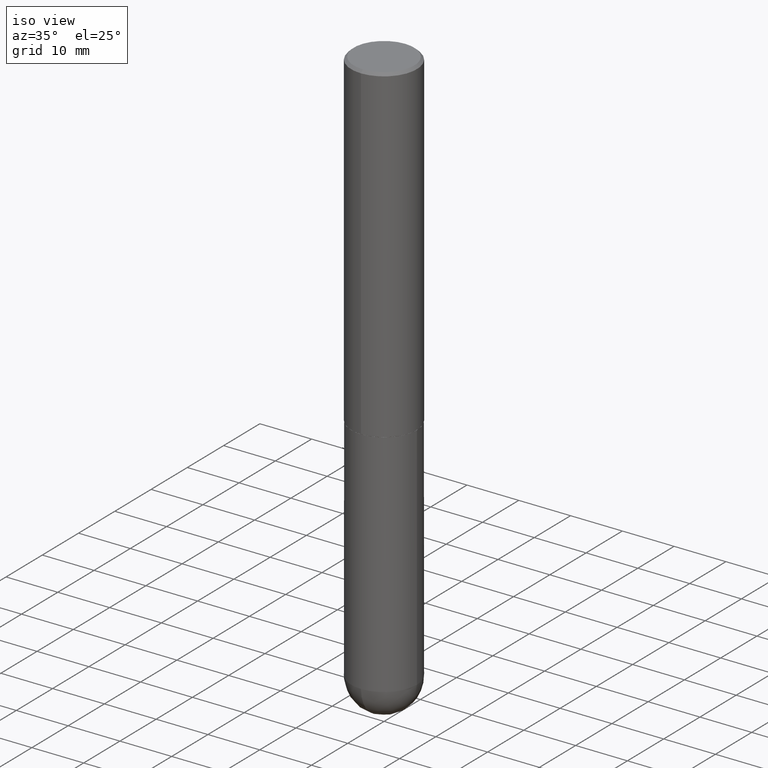
[diagram: clean part render]
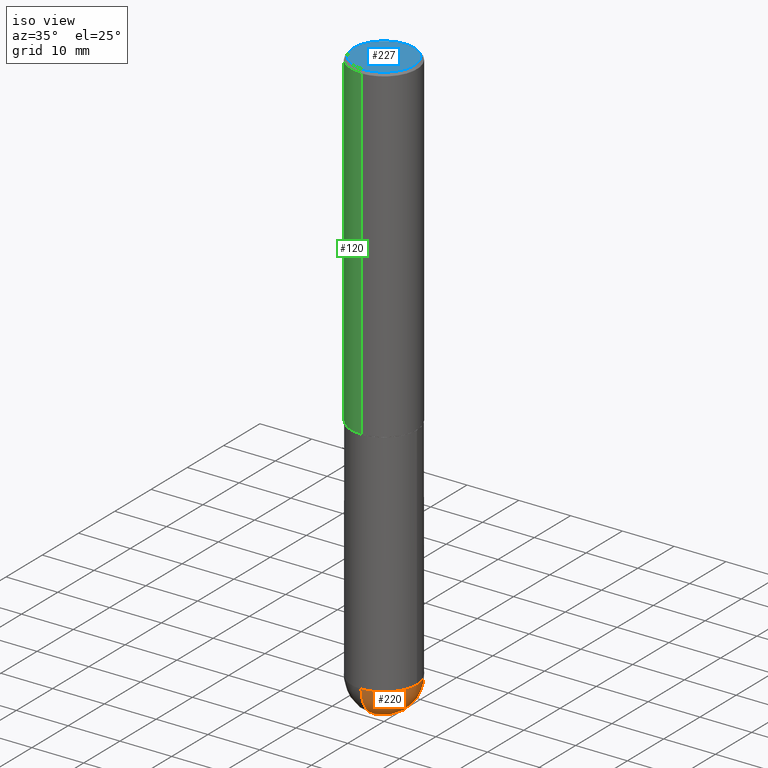
[diagram: same view with three faces highlighted in distinct colors, each labeled with its STEP entity id]
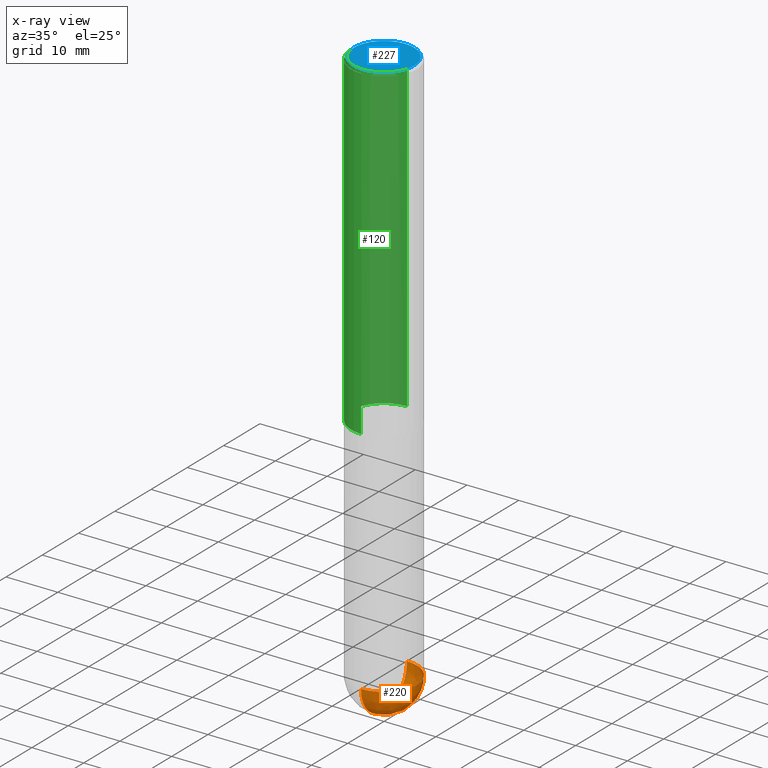
[diagram: x-ray of the same camera — body ghosted, the three highlighted faces saturated]
A machine part, iso view with three faces highlighted in distinct colors.
The next image is the same camera in x-ray (body ghosted, the three faces saturated) — at least one of them is partly hidden behind the body in this view.
Their STEP definitions:

[orange] entity #220 — the highlighted spherical surface has radius 6.35 mm.
#3 = EDGE_CURVE ( 'NONE', #49, #74, #329, .T. ) ;
#8 = ORIENTED_EDGE ( 'NONE', *, *, #174, .F. ) ;
#21 = CARTESIAN_POINT ( 'NONE',  ( 1.745740669421669032E-15, 0.2499999999999849842, -4.250000000000001776 ) ) ;
#25 = CARTESIAN_POINT ( 'NONE',  ( 1.006212264837294429E-28, -1.531297805822341912E-14, -4.250000000000000000 ) ) ;
#33 = DIRECTION ( 'NONE',  ( -2.445468806185136597E-29, 3.491481338843145583E-15, 1.000000000000000000 ) ) ;
#49 = VERTEX_POINT ( 'NONE', #56 ) ;
#50 = CARTESIAN_POINT ( 'NONE',  ( 1.006212264837294429E-28, -1.531297805822341912E-14, -4.250000000000000000 ) ) ;
#56 = CARTESIAN_POINT ( 'NONE',  ( 1.068417942853397052E-28, -1.617054030794486372E-14, -4.500000000000000888 ) ) ;
#57 = DIRECTION ( 'NONE',  ( -1.000000000000000000, 6.982962677686265922E-15, -4.883557194083113462E-29 ) ) ;
#71 = AXIS2_PLACEMENT_3D ( 'NONE', #254, #125, #92 ) ;
#74 = VERTEX_POINT ( 'NONE', #21 ) ;
#92 = DIRECTION ( 'NONE',  ( 1.000000000000000000, -6.982962677686270655E-15, 0.000000000000000000 ) ) ;
#115 = CARTESIAN_POINT ( 'NONE',  ( 1.006212264837294429E-28, -1.531297805822341912E-14, -4.250000000000000000 ) ) ;
#116 = DIRECTION ( 'NONE',  ( 1.000000000000000000, -6.982962677686265922E-15, 4.883557194083112340E-29 ) ) ;
#125 = DIRECTION ( 'NONE',  ( -2.445468806185136597E-29, 3.491481338843145583E-15, 1.000000000000000000 ) ) ;
#126 = DIRECTION ( 'NONE',  ( -1.000000000000000000, 7.105427357601001070E-15, -4.926315508542082329E-29 ) ) ;
#127 = SPHERICAL_SURFACE ( 'NONE', #203, 0.2500000000000001110 ) ;
#138 = AXIS2_PLACEMENT_3D ( 'NONE', #50, #126, #320 ) ;
#140 = VERTEX_POINT ( 'NONE', #351 ) ;
#142 = AXIS2_PLACEMENT_3D ( 'NONE', #25, #116, #155 ) ;
#155 = DIRECTION ( 'NONE',  ( 6.982962677686266711E-15, 1.000000000000000000, 0.000000000000000000 ) ) ;
#173 = ORIENTED_EDGE ( 'NONE', *, *, #239, .F. ) ;
#174 = EDGE_CURVE ( 'NONE', #49, #212, #258, .T. ) ;
#191 = DIRECTION ( 'NONE',  ( 1.000000000000000000, -6.982962677686270655E-15, 0.000000000000000000 ) ) ;
#196 = CIRCLE ( 'NONE', #71, 0.2500000000000000000 ) ;
#203 = AXIS2_PLACEMENT_3D ( 'NONE', #115, #57, #310 ) ;
#212 = VERTEX_POINT ( 'NONE', #409 ) ;
#220 = ADVANCED_FACE ( 'NONE', ( #259 ), #127, .T. ) ;
#237 = EDGE_LOOP ( 'NONE', ( #8, #333, #392, #173 ) ) ;
#239 = EDGE_CURVE ( 'NONE', #212, #140, #196, .T. ) ;
#254 = CARTESIAN_POINT ( 'NONE',  ( 1.039324242628683054E-28, -1.483879569008337040E-14, -4.250000000000000000 ) ) ;
#258 = CIRCLE ( 'NONE', #138, 0.2500000000000001110 ) ;
#259 = FACE_OUTER_BOUND ( 'NONE', #237, .T. ) ;
#293 = CIRCLE ( 'NONE', #308, 0.2500000000000000000 ) ;
#308 = AXIS2_PLACEMENT_3D ( 'NONE', #322, #33, #191 ) ;
#310 = DIRECTION ( 'NONE',  ( 6.982962677686265922E-15, 1.000000000000000000, -4.370956789862818783E-15 ) ) ;
#320 = DIRECTION ( 'NONE',  ( -7.105427357601001859E-15, -1.000000000000000000, 0.000000000000000000 ) ) ;
#322 = CARTESIAN_POINT ( 'NONE',  ( 1.039324242628683054E-28, -1.483879569008337040E-14, -4.250000000000000000 ) ) ;
#329 = CIRCLE ( 'NONE', #142, 0.2500000000000001110 ) ;
#333 = ORIENTED_EDGE ( 'NONE', *, *, #3, .T. ) ;
#340 = EDGE_CURVE ( 'NONE', #140, #74, #293, .T. ) ;
#351 = CARTESIAN_POINT ( 'NONE',  ( 0.2500000000000000000, -1.352949018801718751E-14, -4.250000000000000000 ) ) ;
#392 = ORIENTED_EDGE ( 'NONE', *, *, #340, .F. ) ;
#409 = CARTESIAN_POINT ( 'NONE',  ( -1.776356839400148307E-15, -0.2500000000000151545, -4.249999999999999112 ) ) ;

[blue] entity #227 — the highlighted planar face has unit normal (0, -0, -1).
#2 = CARTESIAN_POINT ( 'NONE',  ( -3.026864160722213020E-45, 4.321401483293435708E-31, 1.237721285492321868E-16 ) ) ;
#10 = CIRCLE ( 'NONE', #243, 0.2299999999999998435 ) ;
#22 = DIRECTION ( 'NONE',  ( 6.982962677686265922E-15, 1.000000000000000000, -3.491417279435842514E-15 ) ) ;
#24 = DIRECTION ( 'NONE',  ( 2.445513538630171527E-29, -3.491417279435842514E-15, -1.000000000000000000 ) ) ;
#79 = AXIS2_PLACEMENT_3D ( 'NONE', #2, #289, #342 ) ;
#84 = DIRECTION ( 'NONE',  ( -2.445513538630171807E-29, 3.491417279435842514E-15, 1.000000000000000000 ) ) ;
#101 = EDGE_CURVE ( 'NONE', #398, #339, #10, .T. ) ;
#105 = CIRCLE ( 'NONE', #79, 0.2299999999999998435 ) ;
#132 = CARTESIAN_POINT ( 'NONE',  ( -1.646519519465166573E-15, -0.2299999999999998435, 9.267981028194753931E-16 ) ) ;
#150 = DIRECTION ( 'NONE',  ( -6.982962677686265922E-15, -1.000000000000000000, 3.491417279435842514E-15 ) ) ;
#160 = AXIS2_PLACEMENT_3D ( 'NONE', #412, #24, #22 ) ;
#192 = CARTESIAN_POINT ( 'NONE',  ( 1.675911042644703379E-15, 0.2299999999999998435, -6.792538457210110194E-16 ) ) ;
#215 = EDGE_CURVE ( 'NONE', #339, #398, #105, .T. ) ;
#227 = ADVANCED_FACE ( 'NONE', ( #352 ), #344, .F. ) ;
#243 = AXIS2_PLACEMENT_3D ( 'NONE', #311, #84, #150 ) ;
#269 = EDGE_LOOP ( 'NONE', ( #365, #361 ) ) ;
#289 = DIRECTION ( 'NONE',  ( -2.445513538630171807E-29, 3.491417279435842514E-15, 1.000000000000000000 ) ) ;
#311 = CARTESIAN_POINT ( 'NONE',  ( -3.026864160722213020E-45, 4.321401483293435708E-31, 1.237721285492321868E-16 ) ) ;
#339 = VERTEX_POINT ( 'NONE', #192 ) ;
#342 = DIRECTION ( 'NONE',  ( -6.982962677686265922E-15, -1.000000000000000000, 3.491417279435842514E-15 ) ) ;
#344 = PLANE ( 'NONE',  #160 ) ;
#352 = FACE_OUTER_BOUND ( 'NONE', #269, .T. ) ;
#361 = ORIENTED_EDGE ( 'NONE', *, *, #101, .T. ) ;
#365 = ORIENTED_EDGE ( 'NONE', *, *, #215, .T. ) ;
#398 = VERTEX_POINT ( 'NONE', #132 ) ;
#412 = CARTESIAN_POINT ( 'NONE',  ( 1.606081415867840081E-15, 0.2299999999999998435, -7.411399099956271128E-16 ) ) ;

[green] entity #120 — the highlighted cylindrical surface (partial cylindrical patch) has radius 6.35 mm, axis along (-0, 0, 1).
#4 = CARTESIAN_POINT ( 'NONE',  ( 6.111338333036800677E-29, -8.725051781310170684E-15, -2.499000000000000110 ) ) ;
#11 = AXIS2_PLACEMENT_3D ( 'NONE', #4, #313, #385 ) ;
#14 = EDGE_LOOP ( 'NONE', ( #43, #80, #238, #306 ) ) ;
#23 = LINE ( 'NONE', #182, #104 ) ;
#35 = AXIS2_PLACEMENT_3D ( 'NONE', #90, #349, #319 ) ;
#37 = LINE ( 'NONE', #233, #336 ) ;
#43 = ORIENTED_EDGE ( 'NONE', *, *, #60, .F. ) ;
#55 = CARTESIAN_POINT ( 'NONE',  ( -1.715124499442882299E-15, -0.2500000000000000555, -0.01999999999999918510 ) ) ;
#58 = DIRECTION ( 'NONE',  ( -2.445513538630171807E-29, 3.491417279435842514E-15, 1.000000000000000000 ) ) ;
#60 = EDGE_CURVE ( 'NONE', #363, #390, #23, .T. ) ;
#80 = ORIENTED_EDGE ( 'NONE', *, *, #197, .T. ) ;
#90 = CARTESIAN_POINT ( 'NONE',  ( 4.891027077260356751E-31, -6.982834558871704009E-17, -0.02000000000000005593 ) ) ;
#104 = VECTOR ( 'NONE', #58, 39.37007874015748143 ) ;
#120 = ADVANCED_FACE ( 'NONE', ( #343 ), #180, .T. ) ;
#147 = DIRECTION ( 'NONE',  ( -6.982962677686266711E-15, -1.000000000000000000, 3.491417279435842908E-15 ) ) ;
#159 = CARTESIAN_POINT ( 'NONE',  ( 1.745740669421566875E-15, 0.2499999999999999167, -0.02000000000000092676 ) ) ;
#165 = CARTESIAN_POINT ( 'NONE',  ( 1.776356839400282414E-15, 0.2499999999999915345, -2.499000000000001442 ) ) ;
#180 = CYLINDRICAL_SURFACE ( 'NONE', #356, 0.2500000000000001110 ) ;
#182 = CARTESIAN_POINT ( 'NONE',  ( 1.776356839400251254E-15, 0.2500000000000001110, -8.728543198589611215E-16 ) ) ;
#197 = EDGE_CURVE ( 'NONE', #363, #366, #394, .T. ) ;
#198 = CARTESIAN_POINT ( 'NONE',  ( -1.745740669421507316E-15, -0.2500000000000089928, -2.498999999999999222 ) ) ;
#233 = CARTESIAN_POINT ( 'NONE',  ( -1.745740669421567467E-15, -0.2500000000000001110, 8.728543198589611215E-16 ) ) ;
#238 = ORIENTED_EDGE ( 'NONE', *, *, #353, .T. ) ;
#246 = VERTEX_POINT ( 'NONE', #55 ) ;
#268 = DIRECTION ( 'NONE',  ( -2.445513538630171807E-29, 3.491417279435842514E-15, 1.000000000000000000 ) ) ;
#299 = CIRCLE ( 'NONE', #35, 0.2500000000000000000 ) ;
#306 = ORIENTED_EDGE ( 'NONE', *, *, #334, .F. ) ;
#313 = DIRECTION ( 'NONE',  ( -2.445513538630171807E-29, 3.491417279435842514E-15, 1.000000000000000000 ) ) ;
#319 = DIRECTION ( 'NONE',  ( -6.982962677686265922E-15, -1.000000000000000000, 3.483106191921935554E-15 ) ) ;
#334 = EDGE_CURVE ( 'NONE', #390, #246, #299, .T. ) ;
#336 = VECTOR ( 'NONE', #268, 39.37007874015748143 ) ;
#341 = DIRECTION ( 'NONE',  ( -2.445513538630171807E-29, 3.491417279435842514E-15, 1.000000000000000000 ) ) ;
#343 = FACE_OUTER_BOUND ( 'NONE', #14, .T. ) ;
#349 = DIRECTION ( 'NONE',  ( -2.445513538630171807E-29, 3.491417279435842514E-15, 1.000000000000000000 ) ) ;
#353 = EDGE_CURVE ( 'NONE', #366, #246, #37, .T. ) ;
#356 = AXIS2_PLACEMENT_3D ( 'NONE', #411, #341, #147 ) ;
#363 = VERTEX_POINT ( 'NONE', #165 ) ;
#366 = VERTEX_POINT ( 'NONE', #198 ) ;
#385 = DIRECTION ( 'NONE',  ( -6.982962677686265922E-15, -1.000000000000000000, 4.370956789862816416E-15 ) ) ;
#390 = VERTEX_POINT ( 'NONE', #159 ) ;
#394 = CIRCLE ( 'NONE', #11, 0.2500000000000002776 ) ;
#411 = CARTESIAN_POINT ( 'NONE',  ( 0.000000000000000000, 0.000000000000000000, 0.000000000000000000 ) ) ;